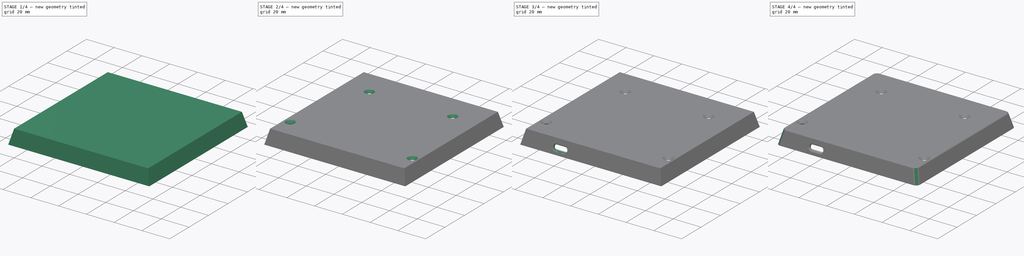
[diagram: build sequence overview — one tinted view per stage of 4, left to right]
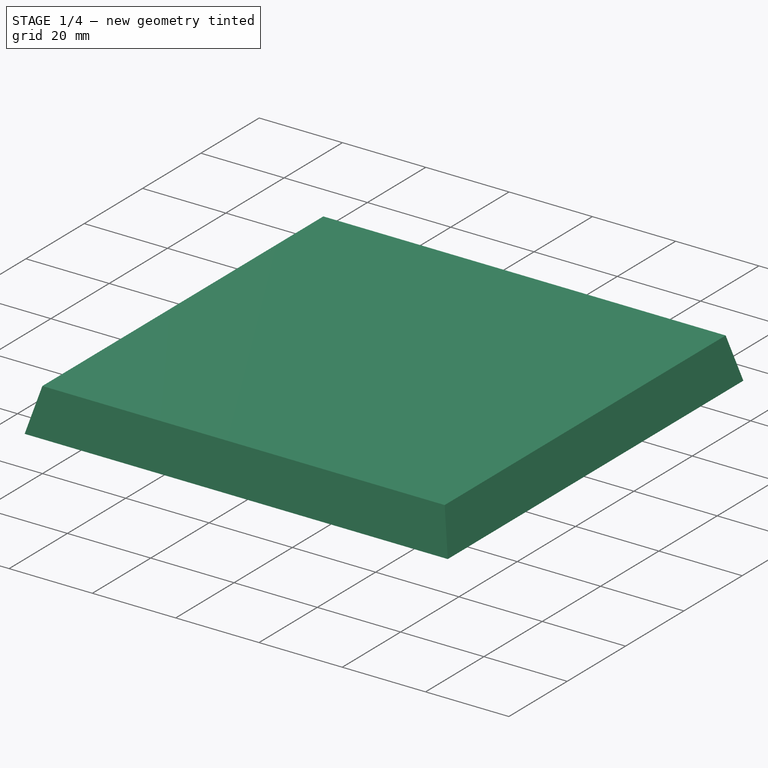
[diagram: stage 1 of 4 — iso view after this stage's code; geometry added in this stage tinted green]
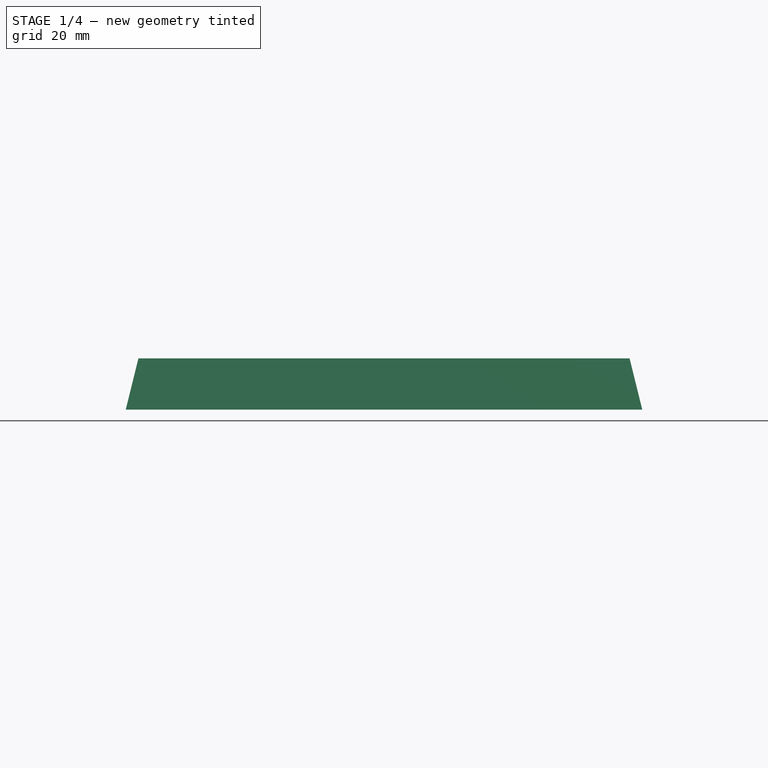
[diagram: stage 1 of 4 — front view after this stage's code; geometry added in this stage tinted green]
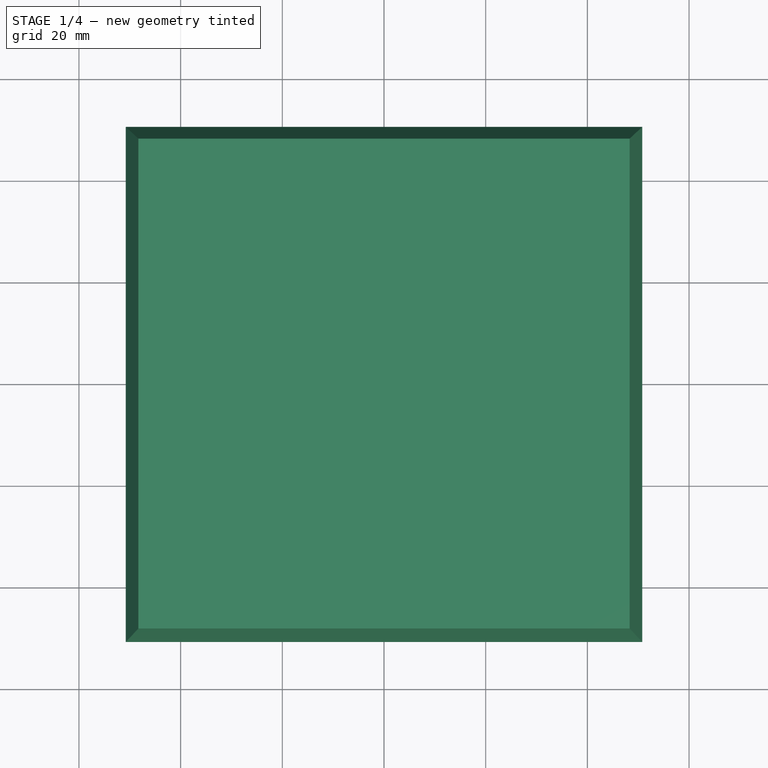
[diagram: stage 1 of 4 — top view after this stage's code; geometry added in this stage tinted green]
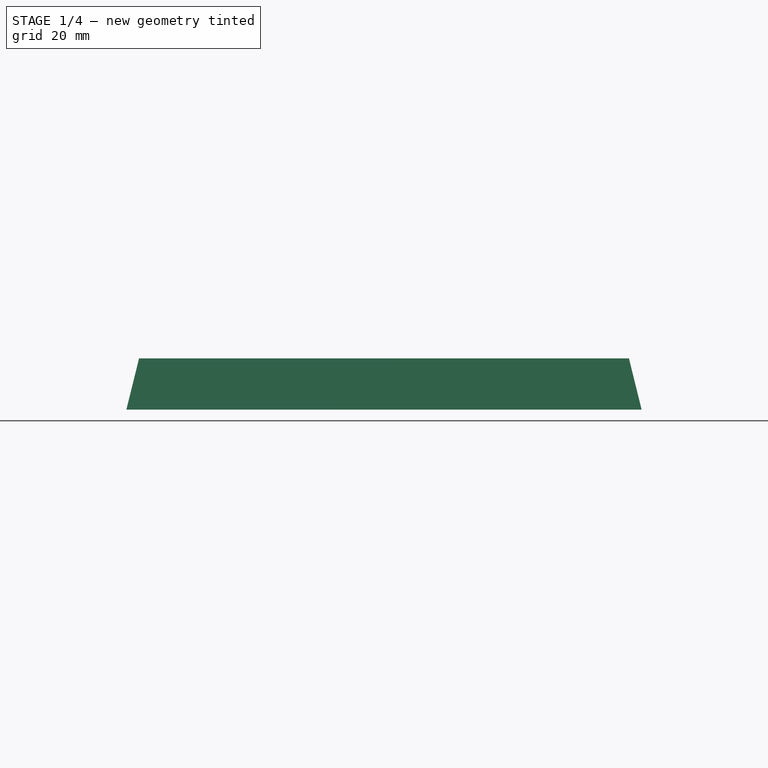
[diagram: stage 1 of 4 — right view after this stage's code; geometry added in this stage tinted green]
FCSTD DOCUMENT  (FreeCAD 0.18R4 (GitTag))
Label: gehäuse unten
License: All rights reserved
LicenseURL: http://en.wikipedia.org/wiki/All_rights_reserved
objects: Sketcher::SketchObject×6, PartDesign::Chamfer×3, PartDesign::Plane×2, PartDesign::Pocket×2, PartDesign::Fillet×2, PartDesign::AdditiveLoft×1, PartDesign::SubtractiveLoft×1, PartDesign::Body×1
note: 22 computed .brp shape members not serialized (recipe doc carries the construction recipe); baked Part::Feature solids carry a one-line shape summary decoded from their .brp

FEATURE [Sketcher::SketchObject] Sketch
  MapMode = 5
  Support = -> [XY_Plane]
  sketch-geometry (4):
    g0: LineSegment StartX=-50.8 StartY=50.675 StartZ=0 EndX=50.8 EndY=50.675 EndZ=0
    g1: LineSegment StartX=50.8 StartY=50.675 StartZ=0 EndX=50.8 EndY=-50.675 EndZ=0
    g2: LineSegment StartX=50.8 StartY=-50.675 StartZ=0 EndX=-50.8 EndY=-50.675 EndZ=0
    g3: LineSegment StartX=-50.8 StartY=-50.675 StartZ=0 EndX=-50.8 EndY=50.675 EndZ=0
  constraints (10):
    c: Coincident(g0,g1)
    c: Coincident(g1,g2)
    c: Coincident(g2,g3)
    c: Coincident(g3,g0)
    c: Horizontal(g2)
    c: Vertical(g3)
    c: DistanceY(g1,g1) = 101.35
    c: DistanceX(g0,g0) = 101.6
    c: Symmetric(g0,g0,g-2)
    c: Symmetric(g1,g0,g-1)
FEATURE [PartDesign::Plane] DatumPlane
  AttachmentOffset = pos=(0,0,10.1) rot=(0,0,1;0rad)
  Length = 121.895
  MapMode = 13
  Placement = pos=(-16.9333,-16.8917,10.1) rot=(0,0,1;0rad)
  ResizeMode = 0
  Support = -> [Sketch]
  Width = 121.645
  expr: AttachmentOffset.Base.z = 1 + 1.6 + 5 + 2.5
FEATURE [Sketcher::SketchObject] Sketch001
  ExternalGeometry = -> [Sketch]
  MapMode = 5
  Placement = pos=(-16.9333,-16.8917,10.1) rot=(0,0,1;0rad)
  Support = -> [DatumPlane]
  sketch-geometry (8):
    g0: LineSegment StartX=-31.3667 StartY=65.0667 StartZ=0 EndX=65.2333 EndY=65.0667 EndZ=0
    g1: LineSegment StartX=65.2333 StartY=65.0667 StartZ=0 EndX=65.2333 EndY=-31.2833 EndZ=0
    g2: LineSegment StartX=65.2333 StartY=-31.2833 StartZ=0 EndX=-31.3667 EndY=-31.2833 EndZ=0
    g3: LineSegment StartX=-31.3667 StartY=-31.2833 StartZ=0 EndX=-31.3667 EndY=65.0667 EndZ=0
    g4: LineSegment [constr] StartX=65.2333 StartY=65.0667 StartZ=0 EndX=65.2333 EndY=67.5667 EndZ=0
    g5: LineSegment [constr] StartX=65.2333 StartY=-31.2833 StartZ=0 EndX=65.2333 EndY=-33.7833 EndZ=0
    g6: LineSegment [constr] StartX=-31.3667 StartY=-31.2833 StartZ=0 EndX=-33.8667 EndY=-31.2833 EndZ=0
    g7: LineSegment [constr] StartX=65.2333 StartY=-31.2833 StartZ=0 EndX=67.7333 EndY=-31.2833 EndZ=0
  constraints (24):
    c: Coincident(g0,g1)
    c: Coincident(g1,g2)
    c: Coincident(g2,g3)
    c: Coincident(g3,g0)
    c: Horizontal(g0)
    c: Horizontal(g2)
    c: Vertical(g1)
    c: Vertical(g3)
    c: Coincident(g4,g0)
    c: PointOnObject(g4,g-3)
    c: Vertical(g4)
    c: Coincident(g5,g1)
    c: PointOnObject(g5,g-4)
    c: Vertical(g5)
    c: Equal(g5,g4)
    c: DistanceY(g4,g4) = 2.5
    c: Coincident(g6,g2)
    c: PointOnObject(g6,g-6)
    c: Horizontal(g6)
    c: Coincident(g7,g1)
    c: PointOnObject(g7,g-5)
    c: Horizontal(g7)
    c: Equal(g7,g6)
    c: DistanceX(g6,g6) = 2.5
FEATURE [PartDesign::AdditiveLoft] AdditiveLoft
  Closed = false
  Profile = -> Sketch
  Ruled = false
  Sections = -> [Sketch001]
FEATURE [Sketcher::SketchObject] Sketch002
  MapMode = 5
  Placement = pos=(0,0,0) rot=(1,0,0;3.14159rad)
  Support = -> [AdditiveLoft]
  sketch-geometry (4):
    g0: LineSegment StartX=-48.5 StartY=48.5 StartZ=0 EndX=48.5 EndY=48.5 EndZ=0
    g1: LineSegment StartX=48.5 StartY=48.5 StartZ=0 EndX=48.5 EndY=-48.5 EndZ=0
    g2: LineSegment StartX=48.5 StartY=-48.5 StartZ=0 EndX=-48.5 EndY=-48.5 EndZ=0
    g3: LineSegment StartX=-48.5 StartY=-48.5 StartZ=0 EndX=-48.5 EndY=48.5 EndZ=0
  constraints (10):
    c: Coincident(g0,g1)
    c: Coincident(g1,g2)
    c: Coincident(g2,g3)
    c: Coincident(g3,g0)
    c: Horizontal(g2)
    c: Vertical(g3)
    c: Symmetric(g0,g0,g-2)
    c: DistanceX(g0,g0) = 97
    c: Symmetric(g1,g0,g-1)
    c: DistanceY(g1,g0) = 97
FEATURE [PartDesign::Plane] DatumPlane001
  AttachmentOffset = pos=(0,0,-8.1) rot=(0,0,1;0rad)
  Length = 121.895
  MapMode = 5
  Placement = pos=(0,0,8.1) rot=(1,0,0;3.14159rad)
  ResizeMode = 0
  Support = -> [AdditiveLoft]
  Width = 121.645
  expr: AttachmentOffset.Base.z = -10.1 + 2.5 - 0.5
FEATURE [Sketcher::SketchObject] Sketch003
  MapMode = 5
  Placement = pos=(0,0,8.1) rot=(1,0,0;3.14159rad)
  Support = -> [DatumPlane001]
  sketch-geometry (4):
    g0: LineSegment StartX=-47.5 StartY=47.5 StartZ=0 EndX=47.5 EndY=47.5 EndZ=0
    g1: LineSegment StartX=47.5 StartY=47.5 StartZ=0 EndX=47.5 EndY=-47.5 EndZ=0
    g2: LineSegment StartX=47.5 StartY=-47.5 StartZ=0 EndX=-47.5 EndY=-47.5 EndZ=0
    g3: LineSegment StartX=-47.5 StartY=-47.5 StartZ=0 EndX=-47.5 EndY=47.5 EndZ=0
  constraints (10):
    c: Coincident(g0,g1)
    c: Coincident(g1,g2)
    c: Coincident(g2,g3)
    c: Coincident(g3,g0)
    c: Horizontal(g2)
    c: Vertical(g3)
    c: Symmetric(g0,g0,g-2)
    c: Symmetric(g1,g0,g-1)
    c: DistanceX(g0,g0) = 95
    c: DistanceY(g1,g0) = 95
FEATURE [PartDesign::SubtractiveLoft] SubtractiveLoft
  BaseFeature = -> AdditiveLoft
  Closed = false
  Profile = -> Sketch002
  Ruled = false
  Sections = -> [Sketch003]
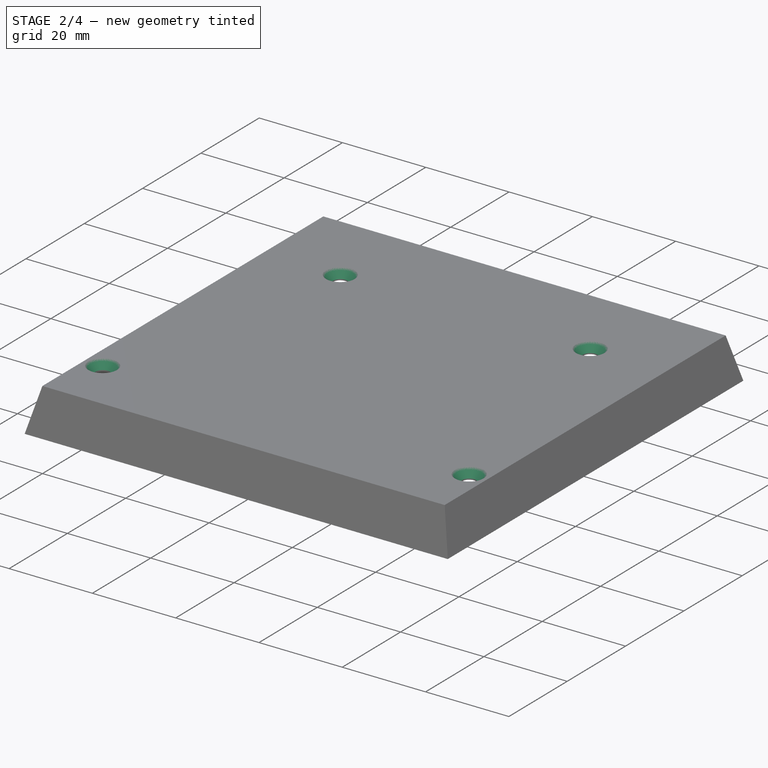
[diagram: stage 2 of 4 — iso view after this stage's code; geometry added in this stage tinted green]
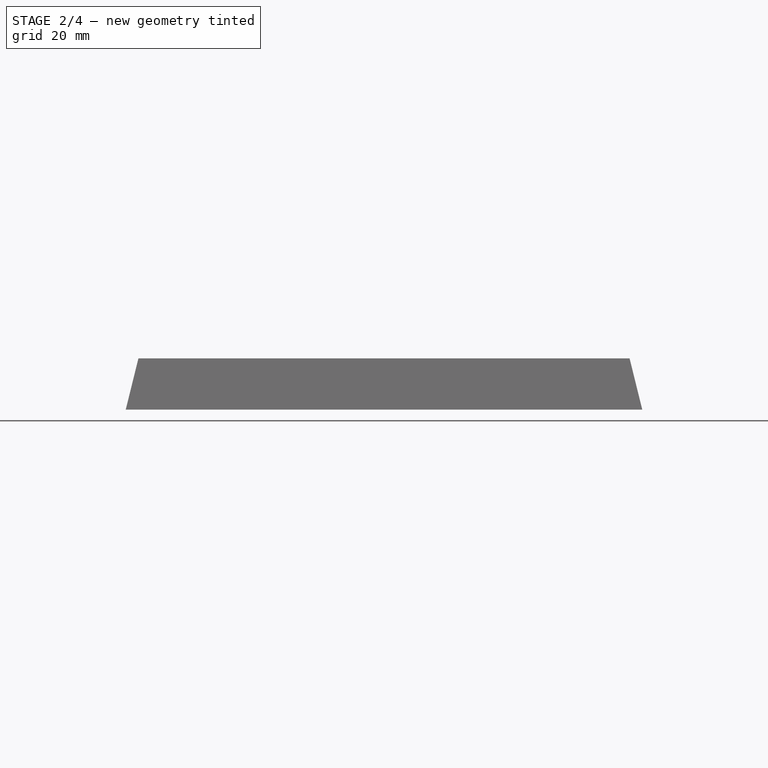
[diagram: stage 2 of 4 — front view after this stage's code; geometry added in this stage tinted green]
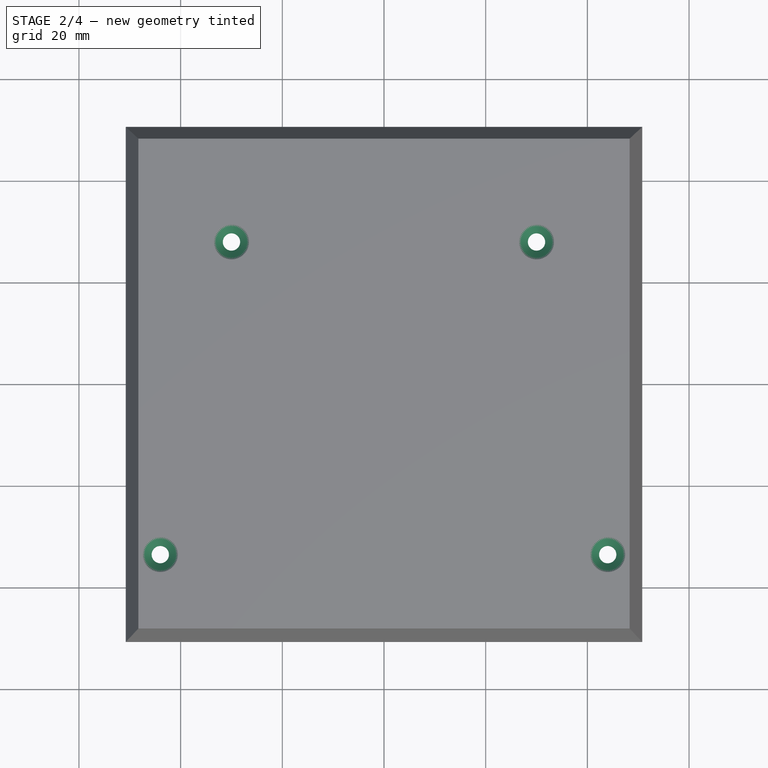
[diagram: stage 2 of 4 — top view after this stage's code; geometry added in this stage tinted green]
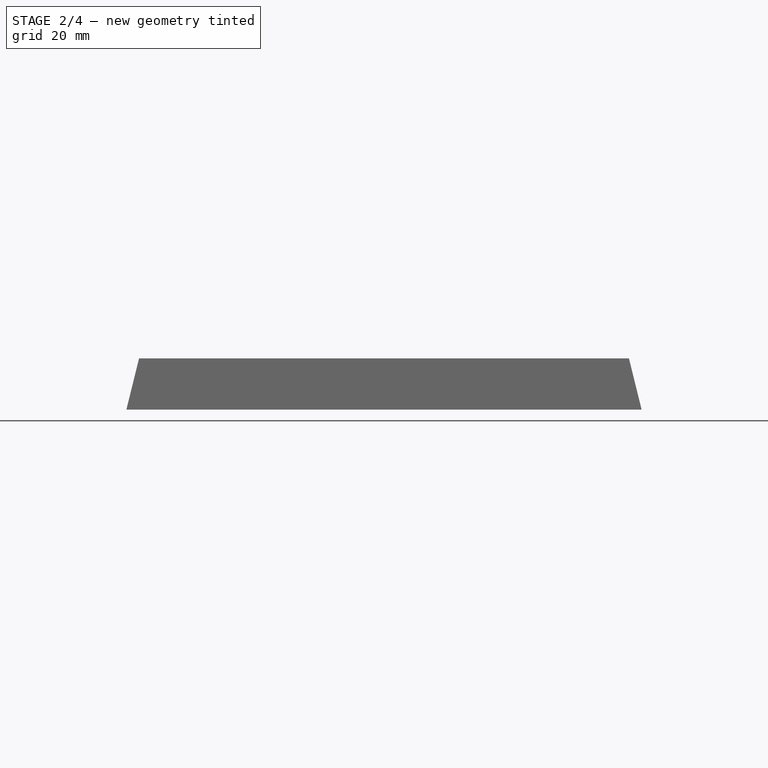
[diagram: stage 2 of 4 — right view after this stage's code; geometry added in this stage tinted green]
FEATURE [Sketcher::SketchObject] Sketch004
  ExternalGeometry = -> [SubtractiveLoft]
  MapMode = 5
  Placement = pos=(0,0,8.1) rot=(1,0,0;3.14159rad)
  Support = -> [SubtractiveLoft]
  sketch-geometry (5):
    g0: Circle CenterX=-44 CenterY=33.625 CenterZ=0 NormalX=0 NormalY=0 NormalZ=1 AngleXU=0 Radius=1.7
    g1: Circle CenterX=44 CenterY=33.625 CenterZ=0 NormalX=0 NormalY=0 NormalZ=1 AngleXU=0 Radius=1.7
    g2: Circle CenterX=-30 CenterY=-27.875 CenterZ=0 NormalX=0 NormalY=0 NormalZ=1 AngleXU=0 Radius=1.7
    g3: Circle CenterX=30 CenterY=-27.875 CenterZ=0 NormalX=0 NormalY=0 NormalZ=1 AngleXU=0 Radius=1.7
    g4: LineSegment [constr] StartX=-75.6049 StartY=-8.125 StartZ=0 EndX=80.0301 EndY=-8.125 EndZ=0
  constraints (14):
    c: Equal(g0,g2)
    c: Equal(g2,g3)
    c: Equal(g3,g1)
    c: Radius(g1) = 1.7
    c: DistanceX(g0,g1) = 88
    c: Symmetric(g0,g1,g-2)
    c: Symmetric(g2,g3,g-2)
    c: DistanceX(g2,g3) = 60
    c: Horizontal(g4)
    c: DistanceY(g-3,g4) = 42.55
    c: DistanceY(g2,g4) = 19.75
    c: DistanceY(g2,g0) = 61.5
    c: DistanceX(g4,g4) = 155.635
    c: DistanceX(g4) = -75.6049
FEATURE [PartDesign::Pocket] Pocket
  BaseFeature = -> SubtractiveLoft
  Length = 5
  Length2 = 100
  Profile = -> Sketch004
  Type = 0
FEATURE [PartDesign::Chamfer] Chamfer
  Base = -> Pocket [Edge25,Edge28,Edge27,Edge26]
  BaseFeature = -> Pocket
  Size = 1.75
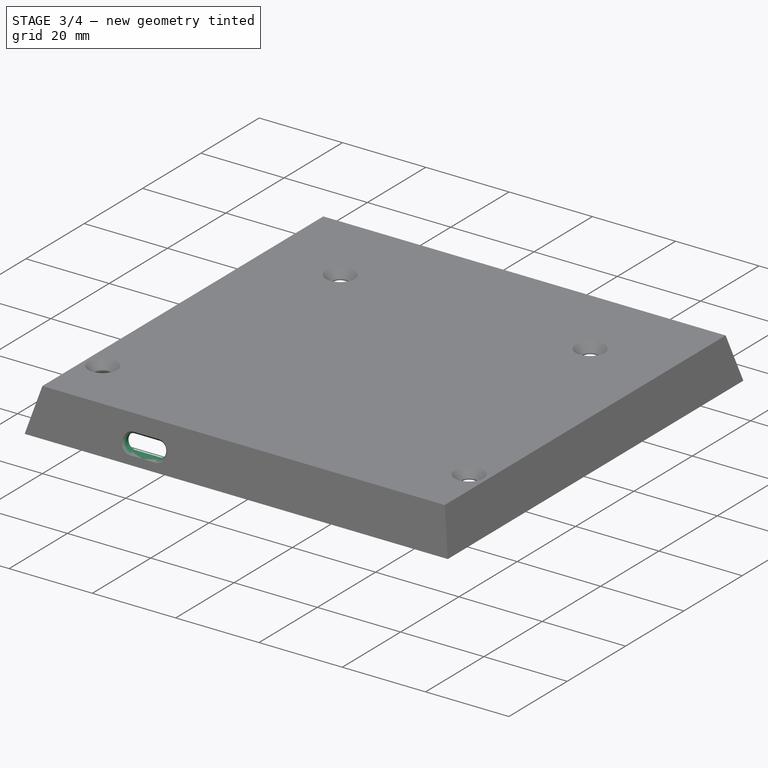
[diagram: stage 3 of 4 — iso view after this stage's code; geometry added in this stage tinted green]
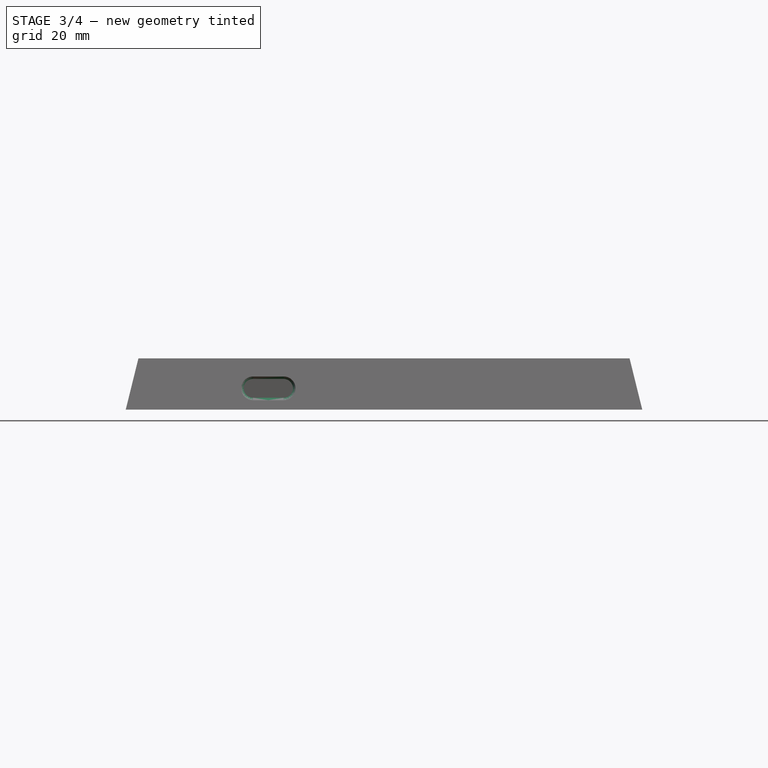
[diagram: stage 3 of 4 — front view after this stage's code; geometry added in this stage tinted green]
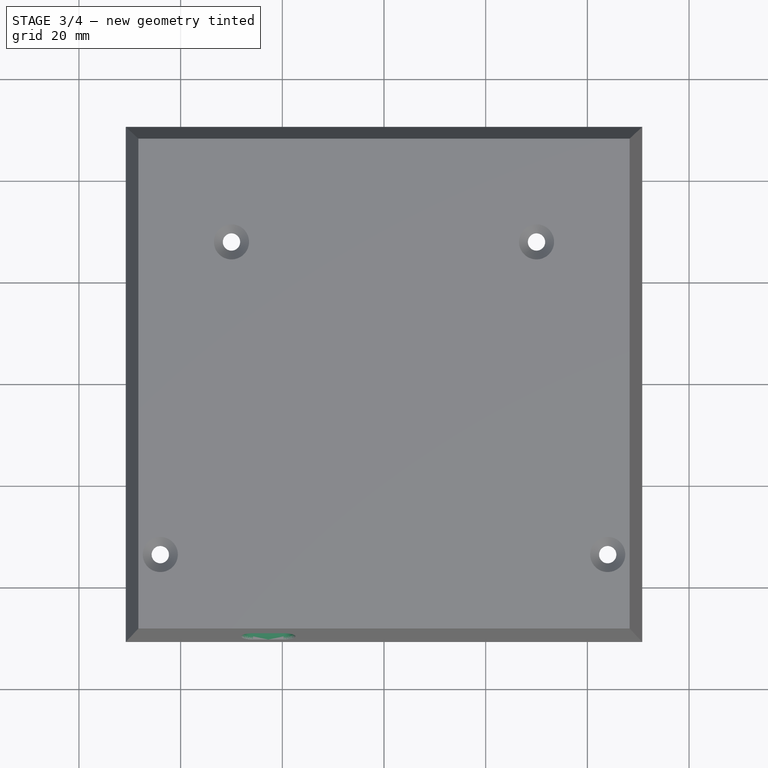
[diagram: stage 3 of 4 — top view after this stage's code; geometry added in this stage tinted green]
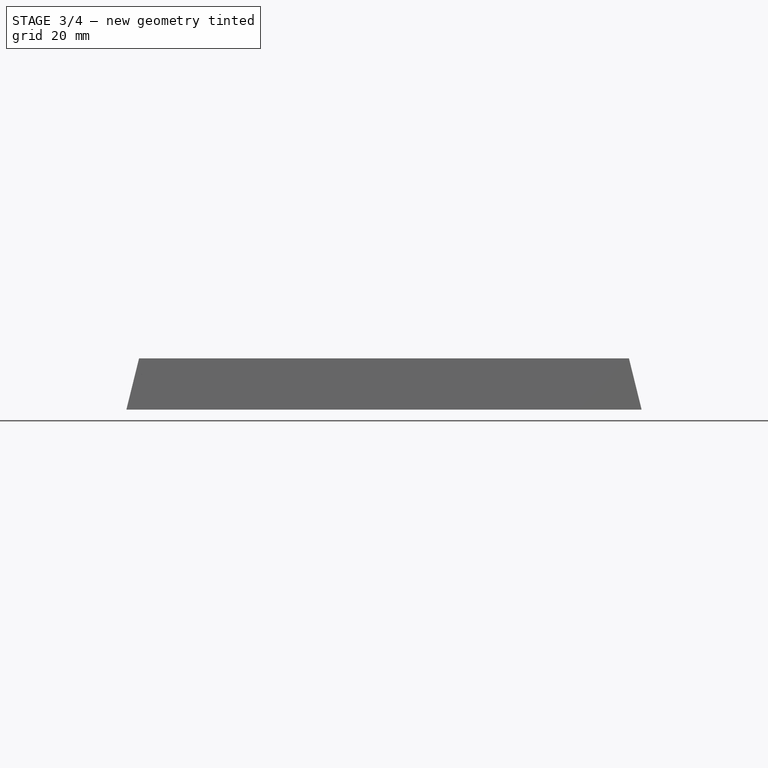
[diagram: stage 3 of 4 — right view after this stage's code; geometry added in this stage tinted green]
FEATURE [Sketcher::SketchObject] Sketch005
  MapMode = 5
  Placement = pos=(0,0,0) rot=(1,0,0;1.5708rad)
  Support = -> [XZ_Plane]
  expr: Constraints[14] = 1 + 1.6 + 1.6
  sketch-geometry (6):
    g0: ArcOfCircle CenterX=-25.75 CenterY=4.2 CenterZ=0 NormalX=0 NormalY=0 NormalZ=1 AngleXU=0 Radius=1.85 StartAngle=1.5708 EndAngle=4.71239
    g1: ArcOfCircle CenterX=-19.75 CenterY=4.2 CenterZ=0 NormalX=0 NormalY=0 NormalZ=1 AngleXU=0 Radius=1.85 StartAngle=4.71239 EndAngle=7.85398
    g2: LineSegment StartX=-25.75 StartY=2.35 StartZ=0 EndX=-19.75 EndY=2.35 EndZ=0
    g3: LineSegment StartX=-25.75 StartY=6.05 StartZ=0 EndX=-19.75 EndY=6.05 EndZ=0
    g4: LineSegment [constr] StartX=-25.75 StartY=4.2 StartZ=0 EndX=-22.75 EndY=4.2 EndZ=0
    g5: LineSegment [constr] StartX=-19.75 StartY=4.2 StartZ=0 EndX=-22.75 EndY=4.2 EndZ=0
  constraints (15):
    c: Tangent(g0,g3) = 1.5708
    c: Tangent(g0,g2) = -1.5708
    c: Tangent(g2,g1) = -1.5708
    c: Tangent(g3,g1) = 1.5708
    c: Horizontal(g2)
    c: Equal(g0,g1)
    c: Radius(g0) = 1.85
    c: DistanceX(g0,g1) = 6
    c: Coincident(g4,g0)
    c: Horizontal(g4)
    c: Coincident(g5,g1)
    c: Coincident(g5,g4)
    c: Equal(g4,g5)
    c: DistanceX(g4,g-1) = 22.75
    c: DistanceY(g0) = 4.2
FEATURE [PartDesign::Pocket] Pocket001
  BaseFeature = -> Chamfer
  Length = 5
  Length2 = 100
  Profile = -> Sketch005
  Reversed = true
  Type = 1
FEATURE [PartDesign::Chamfer] Chamfer001
  Base = -> Pocket001 [Edge36]
  BaseFeature = -> Pocket001
  Size = 0.2
FEATURE [PartDesign::Chamfer] Chamfer002
  Base = -> Chamfer001 [Edge3]
  BaseFeature = -> Chamfer001
  Size = 0.5
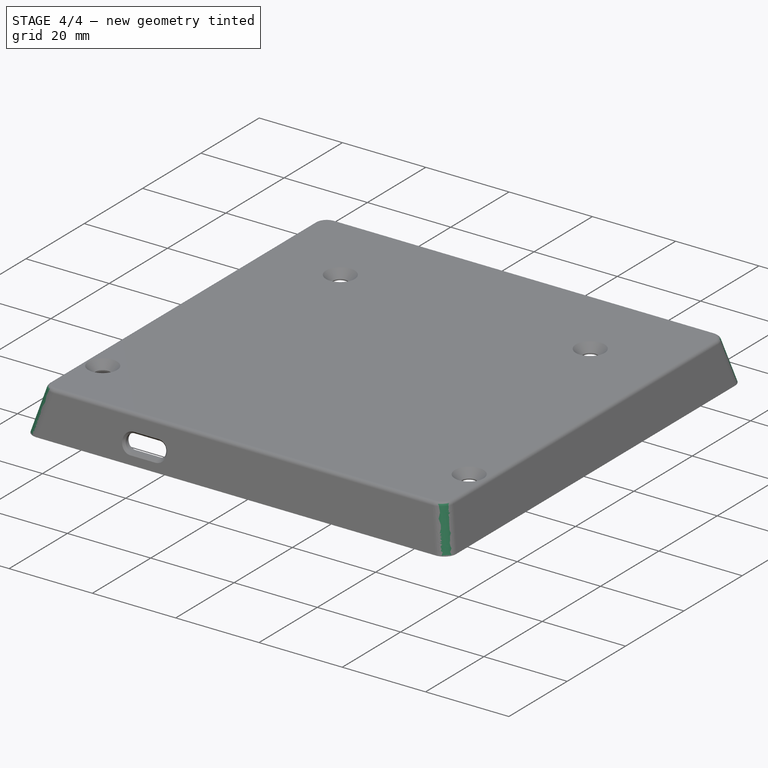
[diagram: stage 4 of 4 — iso view after this stage's code; geometry added in this stage tinted green]
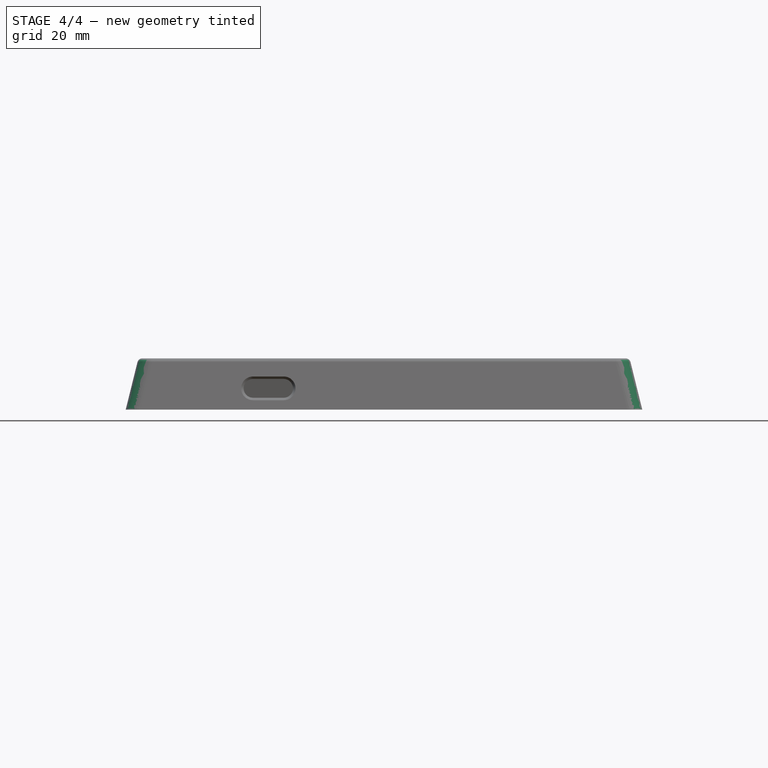
[diagram: stage 4 of 4 — front view after this stage's code; geometry added in this stage tinted green]
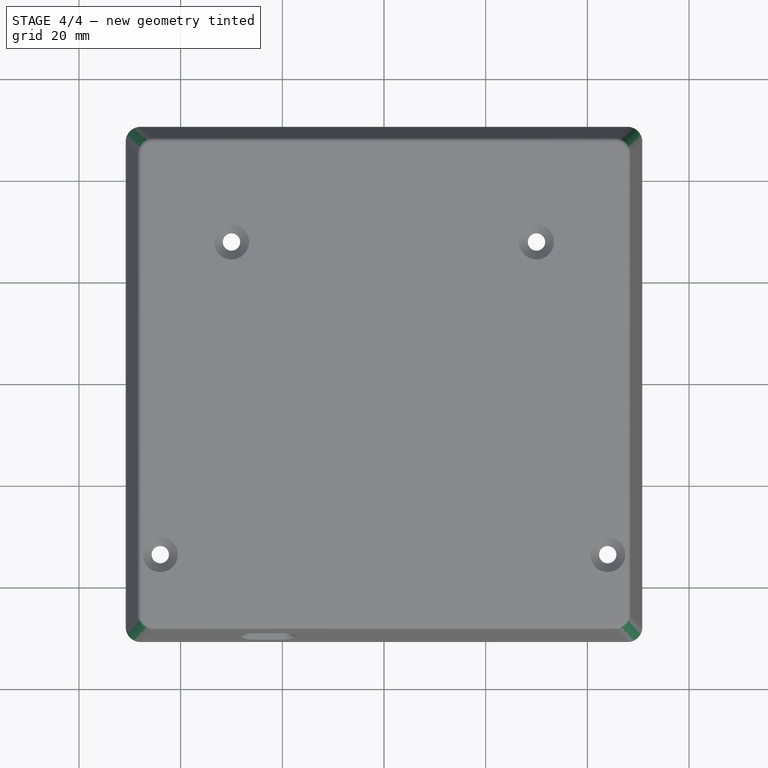
[diagram: stage 4 of 4 — top view after this stage's code; geometry added in this stage tinted green]
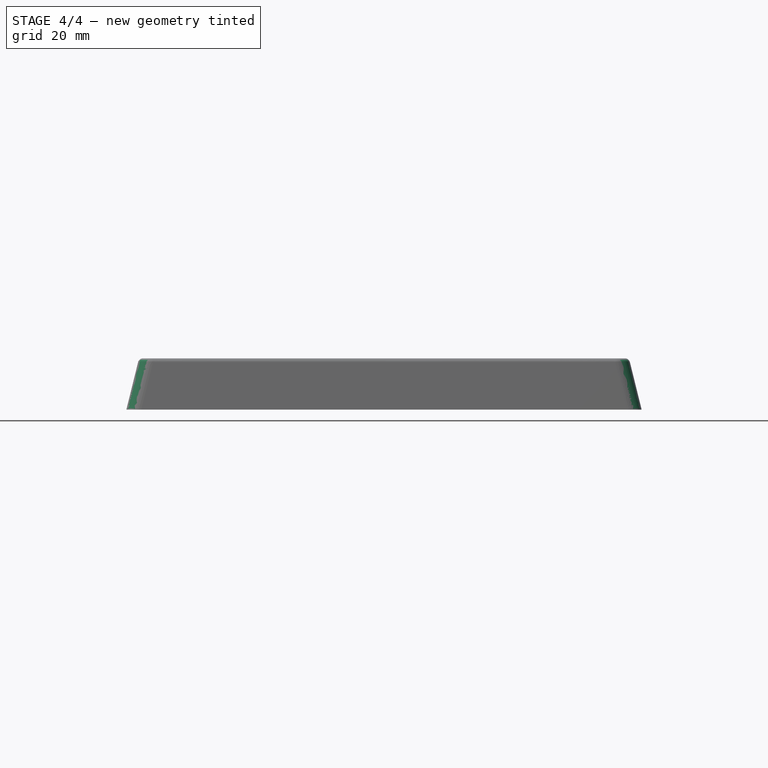
[diagram: stage 4 of 4 — right view after this stage's code; geometry added in this stage tinted green]
FEATURE [PartDesign::Fillet] Fillet
  Base = -> Chamfer002 [Edge44,Edge45,Edge28,Edge27]
  BaseFeature = -> Chamfer002
  Radius = 3
FEATURE [PartDesign::Fillet] Fillet001
  Base = -> Fillet [Edge27]
  BaseFeature = -> Fillet
  Radius = 1
FEATURE [PartDesign::Body] Body
  Group = -> [Sketch,DatumPlane,Sketch001,AdditiveLoft,Sketch002,DatumPlane001,Sketch003,SubtractiveLoft,Sketch004,Pocket,Chamfer,Sketch005,Pocket001,Chamfer001,Chamfer002,Fillet,Fillet001]
  Origin = -> Origin
  Tip = -> Fillet001
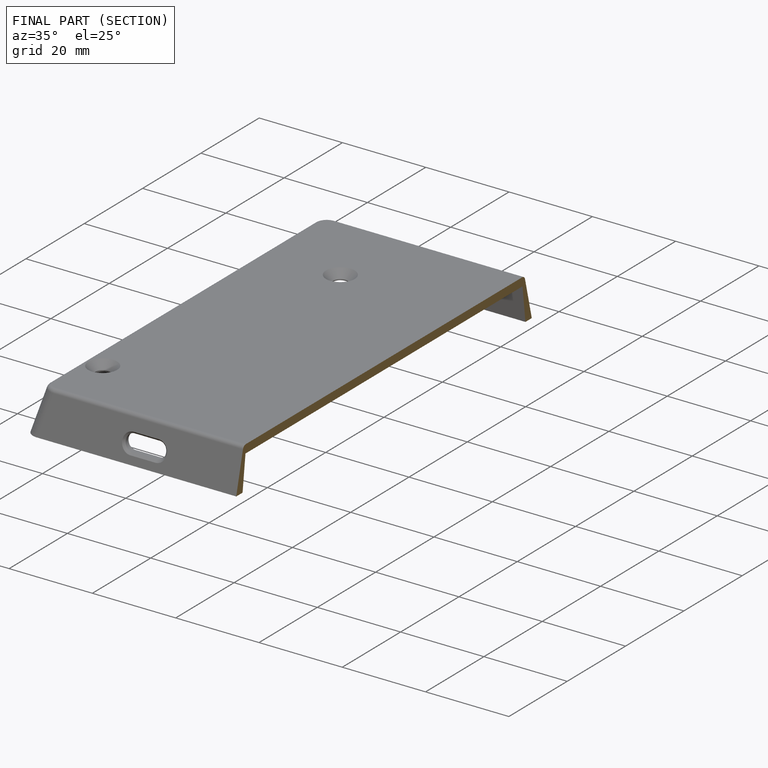
[diagram: finished part — half-section view (interior)]
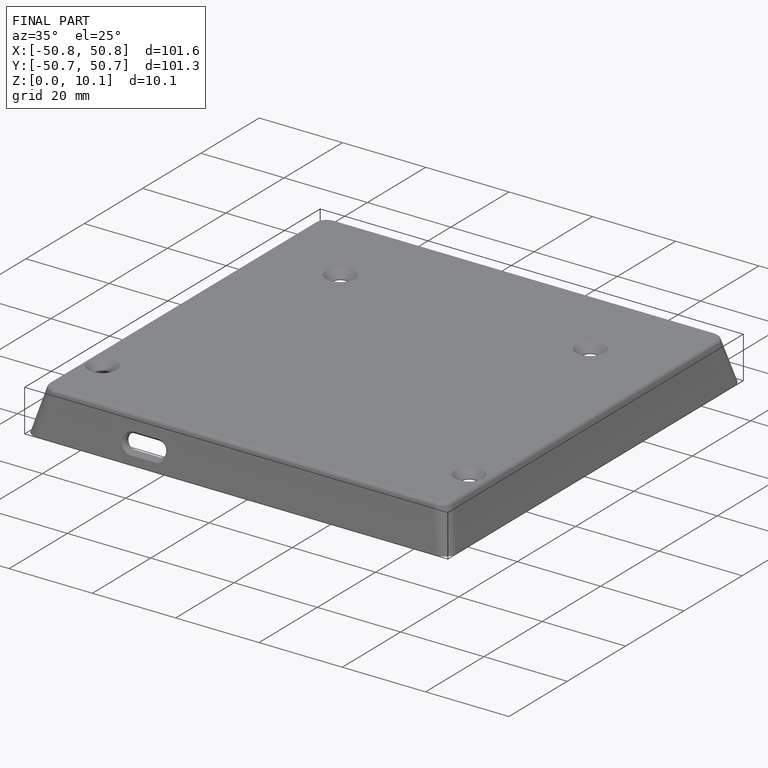
[diagram: finished part — iso view with bounding-box wireframe]
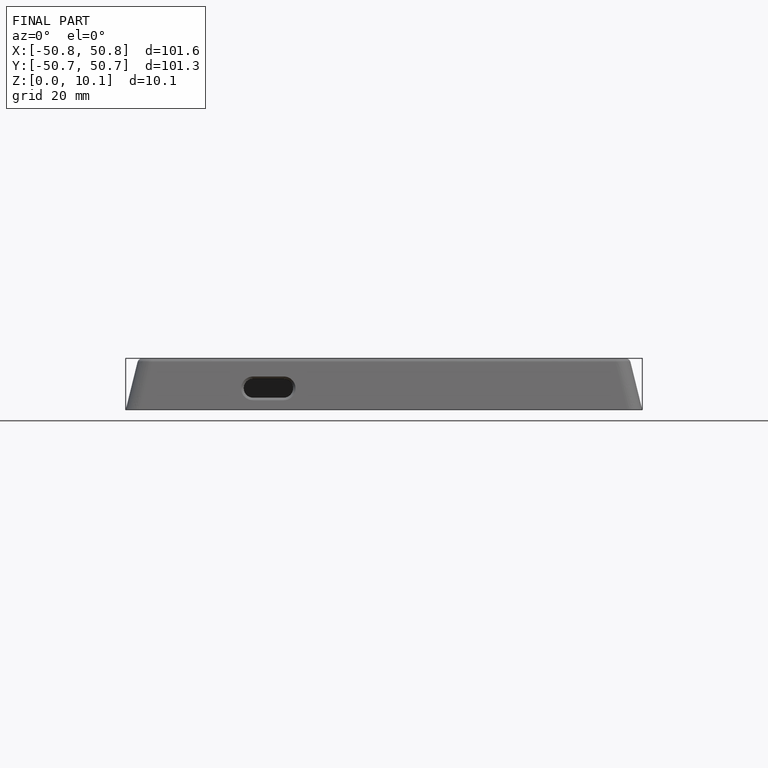
[diagram: finished part — front view with bounding-box wireframe]
